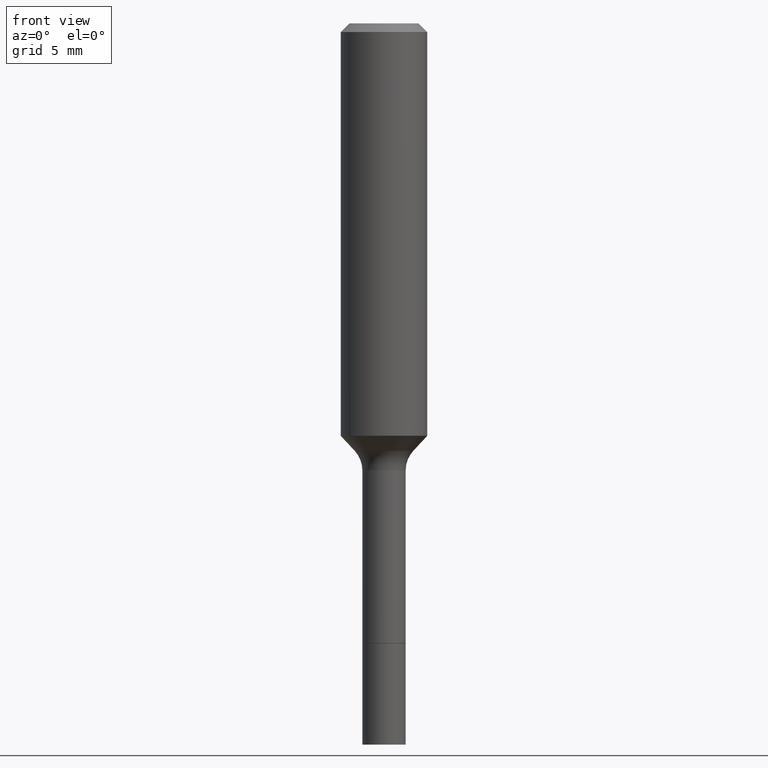
[diagram: clean part render]
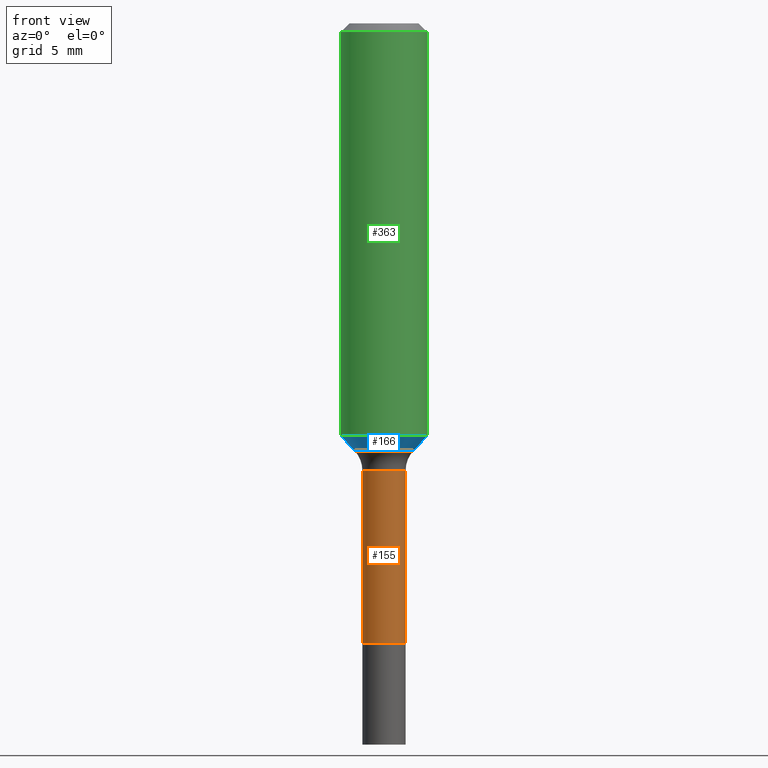
[diagram: same view with three faces highlighted in distinct colors, each labeled with its STEP entity id]
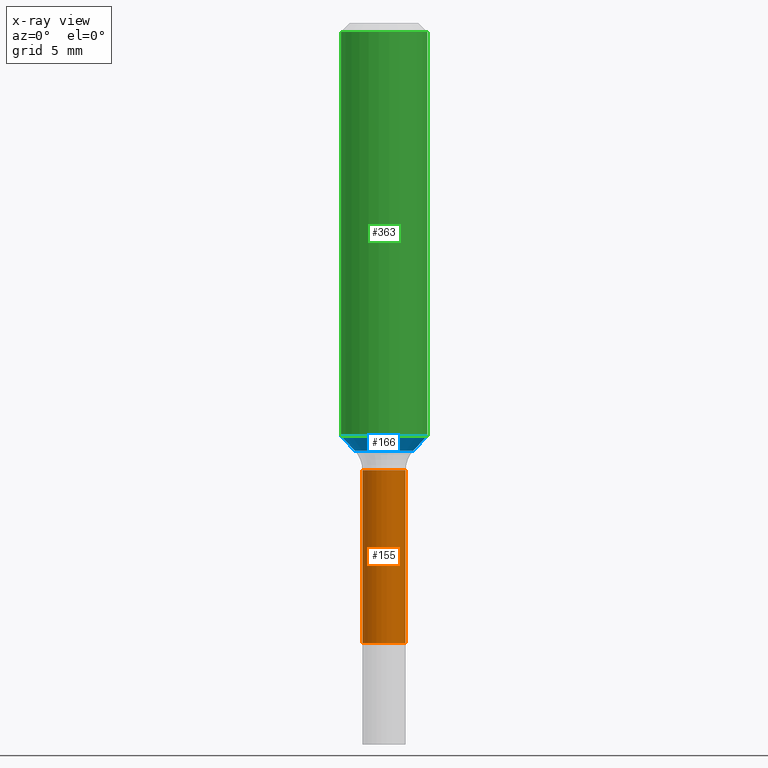
[diagram: x-ray of the same camera — body ghosted, the three highlighted faces saturated]
A machine part, front view with three faces highlighted in distinct colors.
The next image is the same camera in x-ray (body ghosted, the three faces saturated) — at least one of them is partly hidden behind the body in this view.
Their STEP definitions:

[orange] entity #155 — the highlighted cylindrical surface (edge-blend (fillet) strip) has radius 1.4999 mm, axis along (-0, 0, 1).
#16 = VERTEX_POINT ( 'NONE', #320 ) ;
#36 = ORIENTED_EDGE ( 'NONE', *, *, #178, .F. ) ;
#41 = AXIS2_PLACEMENT_3D ( 'NONE', #46, #415, #125 ) ;
#46 = CARTESIAN_POINT ( 'NONE',  ( 2.984694677948959472E-29, -4.261352974058059028E-15, -1.220499999999999918 ) ) ;
#55 = CARTESIAN_POINT ( 'NONE',  ( 4.137733220065251539E-29, -5.907586425322602368E-15, -1.692000000000000171 ) ) ;
#93 = LINE ( 'NONE', #177, #482 ) ;
#100 = CARTESIAN_POINT ( 'NONE',  ( 0.05905000000000000526, -6.319930371439977289E-15, -1.692000000000000171 ) ) ;
#106 = CIRCLE ( 'NONE', #146, 0.05905000000000000526 ) ;
#115 = FACE_OUTER_BOUND ( 'NONE', #472, .T. ) ;
#119 = DIRECTION ( 'NONE',  ( -2.445468806185136597E-29, 3.491481338843145583E-15, 1.000000000000000000 ) ) ;
#125 = DIRECTION ( 'NONE',  ( 1.000000000000000000, -6.982962677686263555E-15, 0.000000000000000000 ) ) ;
#146 = AXIS2_PLACEMENT_3D ( 'NONE', #55, #212, #331 ) ;
#154 = ORIENTED_EDGE ( 'NONE', *, *, #310, .T. ) ;
#155 = ADVANCED_FACE ( 'NONE', ( #115 ), #431, .T. ) ;
#159 = VERTEX_POINT ( 'NONE', #432 ) ;
#177 = CARTESIAN_POINT ( 'NONE',  ( 0.05904999999999997057, -4.123439461173738848E-16, 2.879382386107498819E-30 ) ) ;
#178 = EDGE_CURVE ( 'NONE', #16, #403, #228, .T. ) ;
#198 = VECTOR ( 'NONE', #254, 39.37007874015748143 ) ;
#212 = DIRECTION ( 'NONE',  ( -2.445468806185136597E-29, 3.491481338843145583E-15, 1.000000000000000000 ) ) ;
#228 = CIRCLE ( 'NONE', #41, 0.05904999999999994281 ) ;
#236 = ORIENTED_EDGE ( 'NONE', *, *, #262, .F. ) ;
#254 = DIRECTION ( 'NONE',  ( -2.445468806185136877E-29, 3.491481338843145188E-15, 1.000000000000000000 ) ) ;
#262 = EDGE_CURVE ( 'NONE', #159, #16, #481, .T. ) ;
#282 = DIRECTION ( 'NONE',  ( 1.000000000000000000, -6.982962677686267499E-15, 4.876176775795936353E-29 ) ) ;
#294 = CARTESIAN_POINT ( 'NONE',  ( -0.05904999999999997057, 4.195754854663389506E-16, -2.904631170795520841E-30 ) ) ;
#301 = CARTESIAN_POINT ( 'NONE',  ( 0.05904999999999994281, -4.673696920175432370E-15, -1.220499999999999918 ) ) ;
#310 = EDGE_CURVE ( 'NONE', #502, #403, #93, .T. ) ;
#317 = ORIENTED_EDGE ( 'NONE', *, *, #347, .T. ) ;
#320 = CARTESIAN_POINT ( 'NONE',  ( -0.05904999999999994281, -4.664894214223991994E-15, -1.220499999999999918 ) ) ;
#331 = DIRECTION ( 'NONE',  ( 1.000000000000000000, -6.982962677686272233E-15, 0.000000000000000000 ) ) ;
#343 = DIRECTION ( 'NONE',  ( -2.445468806185136877E-29, 3.491481338843145188E-15, 1.000000000000000000 ) ) ;
#347 = EDGE_CURVE ( 'NONE', #159, #502, #106, .T. ) ;
#361 = AXIS2_PLACEMENT_3D ( 'NONE', #509, #119, #282 ) ;
#403 = VERTEX_POINT ( 'NONE', #301 ) ;
#415 = DIRECTION ( 'NONE',  ( -2.445468806185136597E-29, 3.491481338843145583E-15, 1.000000000000000000 ) ) ;
#431 = CYLINDRICAL_SURFACE ( 'NONE', #361, 0.05904999999999997057 ) ;
#432 = CARTESIAN_POINT ( 'NONE',  ( -0.05905000000000001914, -4.664894214223991205E-15, -1.692000000000000171 ) ) ;
#472 = EDGE_LOOP ( 'NONE', ( #236, #317, #154, #36 ) ) ;
#481 = LINE ( 'NONE', #294, #198 ) ;
#482 = VECTOR ( 'NONE', #343, 39.37007874015748143 ) ;
#502 = VERTEX_POINT ( 'NONE', #100 ) ;
#509 = CARTESIAN_POINT ( 'NONE',  ( 0.000000000000000000, 0.000000000000000000, 0.000000000000000000 ) ) ;

[blue] entity #166 — the highlighted conical surface has half-angle 43 deg.
#8 = CARTESIAN_POINT ( 'NONE',  ( 0.1181000000000001354, -4.754922007517866513E-15, -1.125663789623847055 ) ) ;
#24 = ORIENTED_EDGE ( 'NONE', *, *, #78, .F. ) ;
#42 = CARTESIAN_POINT ( 'NONE',  ( -0.1181000000000001354, -3.091083144350438870E-15, -1.125663789623847055 ) ) ;
#54 = DIRECTION ( 'NONE',  ( 1.000000000000000000, -6.982962677686265133E-15, 0.000000000000000000 ) ) ;
#67 = EDGE_LOOP ( 'NONE', ( #24, #430, #85, #418 ) ) ;
#78 = EDGE_CURVE ( 'NONE', #192, #285, #394, .T. ) ;
#80 = CARTESIAN_POINT ( 'NONE',  ( -0.08054170387046662161, -3.498574984166659824E-15, -1.165940131195000173 ) ) ;
#85 = ORIENTED_EDGE ( 'NONE', *, *, #384, .T. ) ;
#96 = FACE_OUTER_BOUND ( 'NONE', #67, .T. ) ;
#131 = CARTESIAN_POINT ( 'NONE',  ( 2.851270220716778580E-29, -4.070858210275671756E-15, -1.165940131195000173 ) ) ;
#137 = CARTESIAN_POINT ( 'NONE',  ( 0.08054170387046662161, -4.633277922400399410E-15, -1.165940131195000173 ) ) ;
#153 = AXIS2_PLACEMENT_3D ( 'NONE', #131, #211, #477 ) ;
#166 = ADVANCED_FACE ( 'NONE', ( #96 ), #312, .T. ) ;
#172 = DIRECTION ( 'NONE',  ( -2.445468806185136597E-29, 3.491481338843145583E-15, 1.000000000000000000 ) ) ;
#187 = CIRCLE ( 'NONE', #464, 0.08054170387046662161 ) ;
#192 = VERTEX_POINT ( 'NONE', #219 ) ;
#211 = DIRECTION ( 'NONE',  ( -2.445468806185136597E-29, 3.491481338843145583E-15, 1.000000000000000000 ) ) ;
#216 = DIRECTION ( 'NONE',  ( 0.6819983600624957010, -2.208861293262447404E-15, 0.7313537016191730133 ) ) ;
#218 = VECTOR ( 'NONE', #216, 39.37007874015748854 ) ;
#219 = CARTESIAN_POINT ( 'NONE',  ( -0.08054170387046642732, -3.498574984166661401E-15, -1.165940131195000173 ) ) ;
#223 = EDGE_CURVE ( 'NONE', #285, #276, #451, .T. ) ;
#248 = EDGE_CURVE ( 'NONE', #192, #309, #187, .T. ) ;
#259 = CARTESIAN_POINT ( 'NONE',  ( 2.752775683777265765E-29, -3.930234115283118251E-15, -1.125663789623847055 ) ) ;
#276 = VERTEX_POINT ( 'NONE', #8 ) ;
#285 = VERTEX_POINT ( 'NONE', #42 ) ;
#295 = LINE ( 'NONE', #137, #218 ) ;
#302 = CARTESIAN_POINT ( 'NONE',  ( 0.08054170387046642732, -4.633277922400398622E-15, -1.165940131195000173 ) ) ;
#309 = VERTEX_POINT ( 'NONE', #302 ) ;
#312 = CONICAL_SURFACE ( 'NONE', #153, 0.08054170387046662161, 0.7504915783575579757 ) ;
#329 = DIRECTION ( 'NONE',  ( 1.000000000000000000, -6.982962677686262766E-15, 0.000000000000000000 ) ) ;
#374 = CARTESIAN_POINT ( 'NONE',  ( 2.851270220716778580E-29, -4.070858210275671756E-15, -1.165940131195000173 ) ) ;
#384 = EDGE_CURVE ( 'NONE', #309, #276, #295, .T. ) ;
#394 = LINE ( 'NONE', #80, #511 ) ;
#405 = AXIS2_PLACEMENT_3D ( 'NONE', #259, #172, #54 ) ;
#418 = ORIENTED_EDGE ( 'NONE', *, *, #223, .F. ) ;
#430 = ORIENTED_EDGE ( 'NONE', *, *, #248, .T. ) ;
#451 = CIRCLE ( 'NONE', #405, 0.1181000000000001354 ) ;
#464 = AXIS2_PLACEMENT_3D ( 'NONE', #374, #485, #329 ) ;
#467 = DIRECTION ( 'NONE',  ( -0.6819983600624957010, 7.399397606724275532E-15, 0.7313537016191730133 ) ) ;
#477 = DIRECTION ( 'NONE',  ( 1.000000000000000000, -6.982962677686262766E-15, 0.000000000000000000 ) ) ;
#485 = DIRECTION ( 'NONE',  ( -2.445468806185136597E-29, 3.491481338843145583E-15, 1.000000000000000000 ) ) ;
#511 = VECTOR ( 'NONE', #467, 39.37007874015748854 ) ;

[green] entity #363 — the highlighted cylindrical surface (partial cylindrical patch) has radius 2.9997 mm, axis along (-0, 0, 1).
#8 = CARTESIAN_POINT ( 'NONE',  ( 0.1181000000000001354, -4.754922007517866513E-15, -1.125663789623847055 ) ) ;
#30 = VECTOR ( 'NONE', #33, 39.37007874015748143 ) ;
#33 = DIRECTION ( 'NONE',  ( -2.445468806185136877E-29, 3.491481338843145188E-15, 1.000000000000000000 ) ) ;
#40 = ORIENTED_EDGE ( 'NONE', *, *, #223, .T. ) ;
#42 = CARTESIAN_POINT ( 'NONE',  ( -0.1181000000000001354, -3.091083144350438870E-15, -1.125663789623847055 ) ) ;
#54 = DIRECTION ( 'NONE',  ( 1.000000000000000000, -6.982962677686265133E-15, 0.000000000000000000 ) ) ;
#86 = CARTESIAN_POINT ( 'NONE',  ( 0.1181000000000000660, -8.246878922347485584E-16, 5.758764772215003944E-30 ) ) ;
#90 = DIRECTION ( 'NONE',  ( -2.445468806185136877E-29, 3.491481338843145188E-15, 1.000000000000000000 ) ) ;
#107 = AXIS2_PLACEMENT_3D ( 'NONE', #483, #478, #208 ) ;
#114 = ORIENTED_EDGE ( 'NONE', *, *, #209, .T. ) ;
#161 = CIRCLE ( 'NONE', #450, 0.1180999999999999966 ) ;
#172 = DIRECTION ( 'NONE',  ( -2.445468806185136597E-29, 3.491481338843145583E-15, 1.000000000000000000 ) ) ;
#176 = FACE_OUTER_BOUND ( 'NONE', #226, .T. ) ;
#186 = VERTEX_POINT ( 'NONE', #407 ) ;
#208 = DIRECTION ( 'NONE',  ( 1.000000000000000000, -6.982962677686266711E-15, 4.876176775795936353E-29 ) ) ;
#209 = EDGE_CURVE ( 'NONE', #276, #349, #330, .T. ) ;
#220 = CYLINDRICAL_SURFACE ( 'NONE', #107, 0.1181000000000000660 ) ;
#223 = EDGE_CURVE ( 'NONE', #285, #276, #451, .T. ) ;
#226 = EDGE_LOOP ( 'NONE', ( #353, #40, #114, #424 ) ) ;
#259 = CARTESIAN_POINT ( 'NONE',  ( 2.752775683777265765E-29, -3.930234115283118251E-15, -1.125663789623847055 ) ) ;
#265 = DIRECTION ( 'NONE',  ( -2.445468806185136597E-29, 3.491481338843145583E-15, 1.000000000000000000 ) ) ;
#276 = VERTEX_POINT ( 'NONE', #8 ) ;
#285 = VERTEX_POINT ( 'NONE', #42 ) ;
#306 = CARTESIAN_POINT ( 'NONE',  ( -0.1181000000000000660, 8.391509709326787887E-16, -5.809262341591047287E-30 ) ) ;
#316 = EDGE_CURVE ( 'NONE', #285, #186, #491, .T. ) ;
#319 = VECTOR ( 'NONE', #90, 39.37007874015748143 ) ;
#330 = LINE ( 'NONE', #86, #319 ) ;
#332 = CARTESIAN_POINT ( 'NONE',  ( 5.776197320209328408E-31, -8.246878922347560526E-17, -0.02362000000000014435 ) ) ;
#349 = VERTEX_POINT ( 'NONE', #441 ) ;
#353 = ORIENTED_EDGE ( 'NONE', *, *, #316, .F. ) ;
#363 = ADVANCED_FACE ( 'NONE', ( #176 ), #220, .T. ) ;
#405 = AXIS2_PLACEMENT_3D ( 'NONE', #259, #172, #54 ) ;
#407 = CARTESIAN_POINT ( 'NONE',  ( -0.1180999999999999966, -1.167200481320617671E-15, -0.02362000000000014435 ) ) ;
#424 = ORIENTED_EDGE ( 'NONE', *, *, #466, .F. ) ;
#441 = CARTESIAN_POINT ( 'NONE',  ( 0.1180999999999999966, -9.071566814582237199E-16, -0.02362000000000014435 ) ) ;
#450 = AXIS2_PLACEMENT_3D ( 'NONE', #332, #265, #515 ) ;
#451 = CIRCLE ( 'NONE', #405, 0.1181000000000001354 ) ;
#466 = EDGE_CURVE ( 'NONE', #186, #349, #161, .T. ) ;
#478 = DIRECTION ( 'NONE',  ( -2.445468806185136597E-29, 3.491481338843145583E-15, 1.000000000000000000 ) ) ;
#483 = CARTESIAN_POINT ( 'NONE',  ( 0.000000000000000000, 0.000000000000000000, 0.000000000000000000 ) ) ;
#491 = LINE ( 'NONE', #306, #30 ) ;
#515 = DIRECTION ( 'NONE',  ( 1.000000000000000000, -6.982962677686266711E-15, 0.000000000000000000 ) ) ;